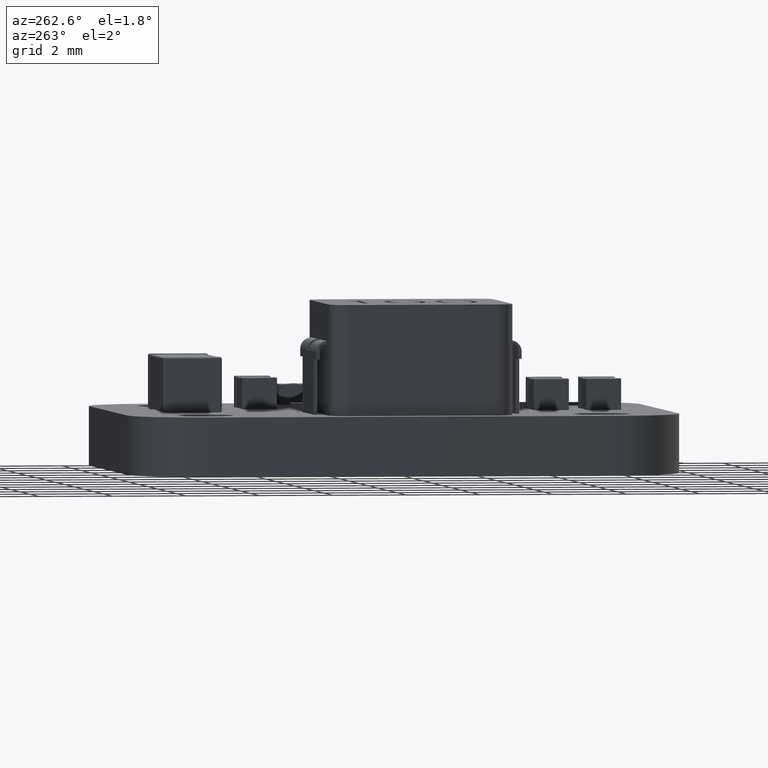
[diagram: clean part render]
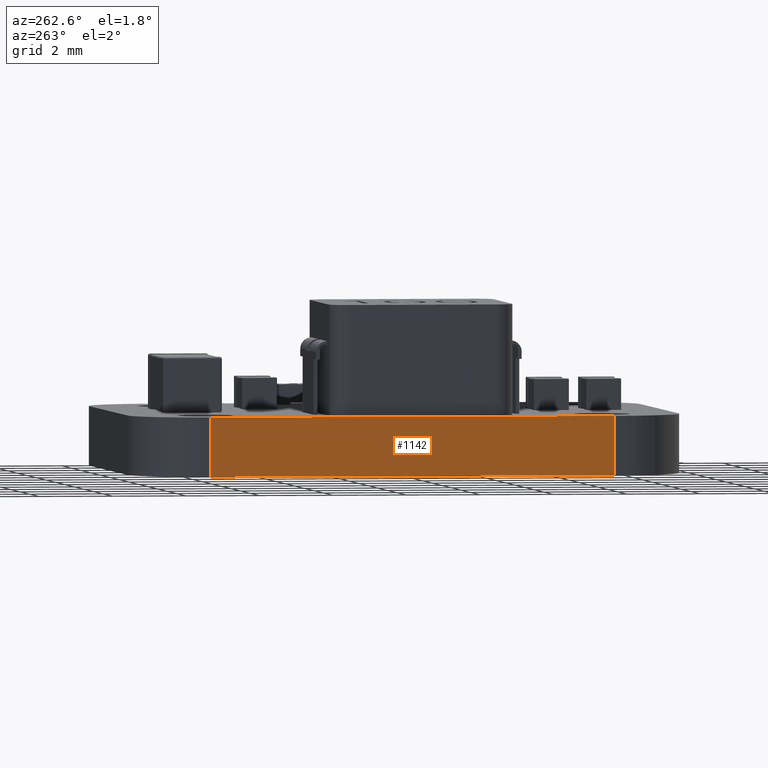
[diagram: same view with one face highlighted and labeled with its STEP entity id]
A machine part, auxiliary view. The second image highlights one B-rep face of the part: STEP entity #1142.
In plain terms, the highlighted planar face has unit normal (1, 0, 0).
Its self-contained STEP definition (entity closure, byte-faithful):
#1086 = VERTEX_POINT('',#1087);
#1087 = CARTESIAN_POINT('',(0.6482,-1.5302,0.803));
#1093 = EDGE_CURVE('',#1094,#1086,#1096,.T.);
#1094 = VERTEX_POINT('',#1095);
#1095 = CARTESIAN_POINT('',(0.6482,-1.5302,-0.803));
#1096 = LINE('',#1097,#1098);
#1097 = CARTESIAN_POINT('',(0.6482,-1.5302,-0.803));
#1098 = VECTOR('',#1099,1.);
#1099 = DIRECTION('',(0.,0.,1.));
#1142 = ADVANCED_FACE('',(#1143),#1168,.F.);
#1143 = FACE_BOUND('',#1144,.F.);
#1144 = EDGE_LOOP('',(#1145,#1146,#1154,#1162));
#1145 = ORIENTED_EDGE('',*,*,#1093,.T.);
#1146 = ORIENTED_EDGE('',*,*,#1147,.T.);
#1147 = EDGE_CURVE('',#1086,#1148,#1150,.T.);
#1148 = VERTEX_POINT('',#1149);
#1149 = CARTESIAN_POINT('',(0.6482,-12.5302,0.803));
#1150 = LINE('',#1151,#1152);
#1151 = CARTESIAN_POINT('',(0.6482,-1.5302,0.803));
#1152 = VECTOR('',#1153,1.);
#1153 = DIRECTION('',(0.,-1.,0.));
#1154 = ORIENTED_EDGE('',*,*,#1155,.F.);
#1155 = EDGE_CURVE('',#1156,#1148,#1158,.T.);
#1156 = VERTEX_POINT('',#1157);
#1157 = CARTESIAN_POINT('',(0.6482,-12.5302,-0.803));
#1158 = LINE('',#1159,#1160);
#1159 = CARTESIAN_POINT('',(0.6482,-12.5302,-0.803));
#1160 = VECTOR('',#1161,1.);
#1161 = DIRECTION('',(0.,0.,1.));
#1162 = ORIENTED_EDGE('',*,*,#1163,.F.);
#1163 = EDGE_CURVE('',#1094,#1156,#1164,.T.);
#1164 = LINE('',#1165,#1166);
#1165 = CARTESIAN_POINT('',(0.6482,-1.5302,-0.803));
#1166 = VECTOR('',#1167,1.);
#1167 = DIRECTION('',(0.,-1.,0.));
#1168 = PLANE('',#1169);
#1169 = AXIS2_PLACEMENT_3D('',#1170,#1171,#1172);
#1170 = CARTESIAN_POINT('',(0.6482,-1.5302,-0.803));
#1171 = DIRECTION('',(1.,0.,-0.));
#1172 = DIRECTION('',(0.,-1.,0.));